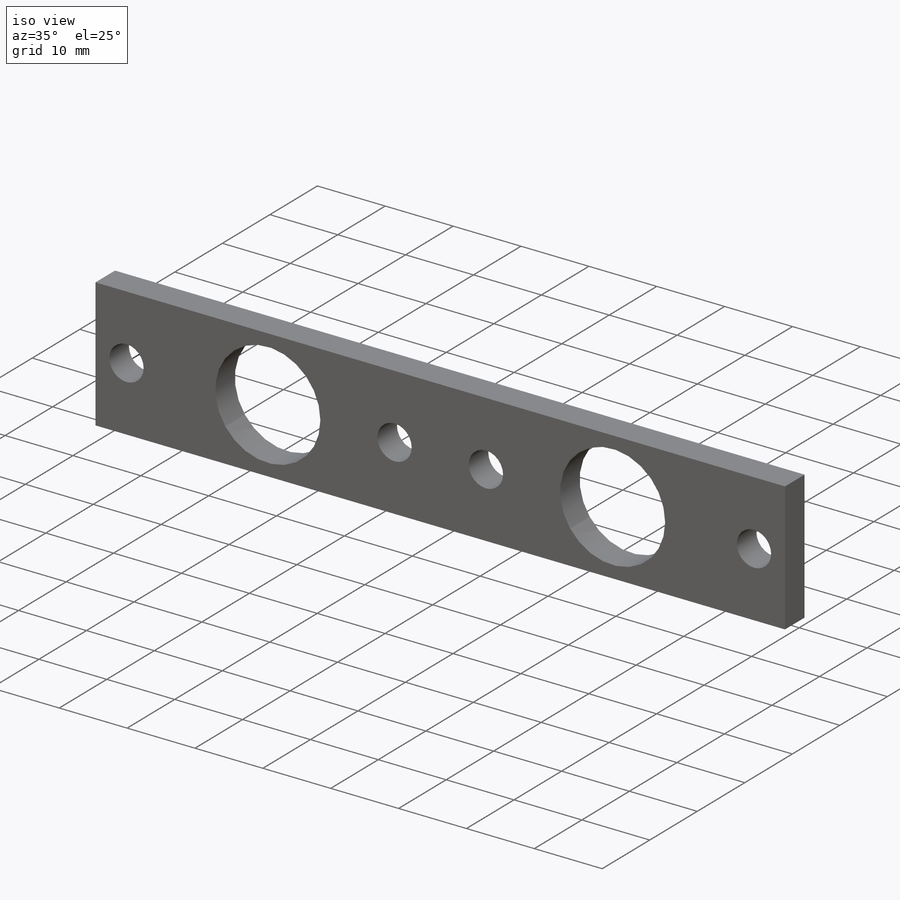
[diagram: iso view]
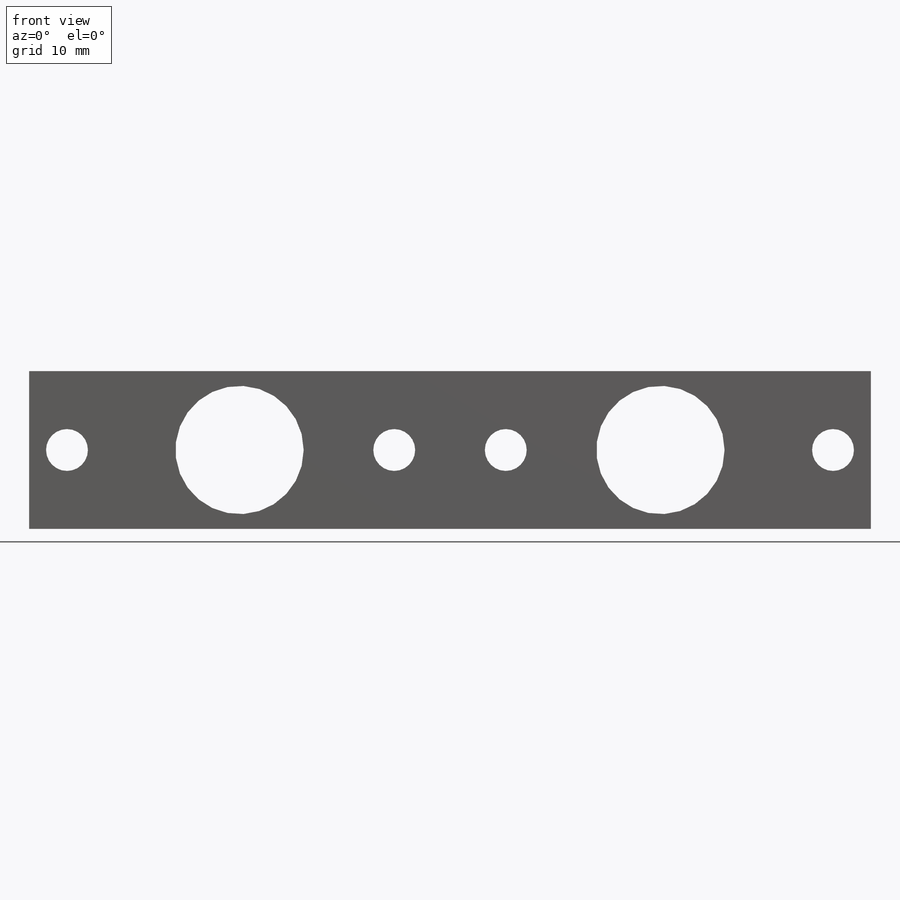
[diagram: front view]
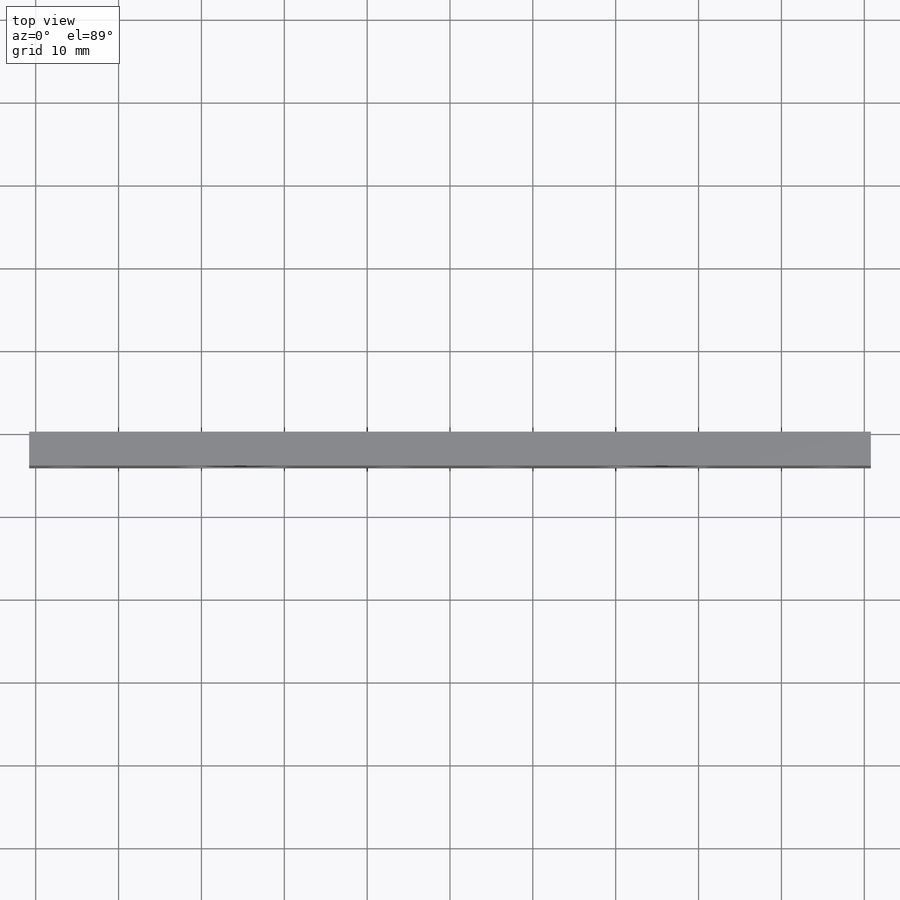
[diagram: top view]
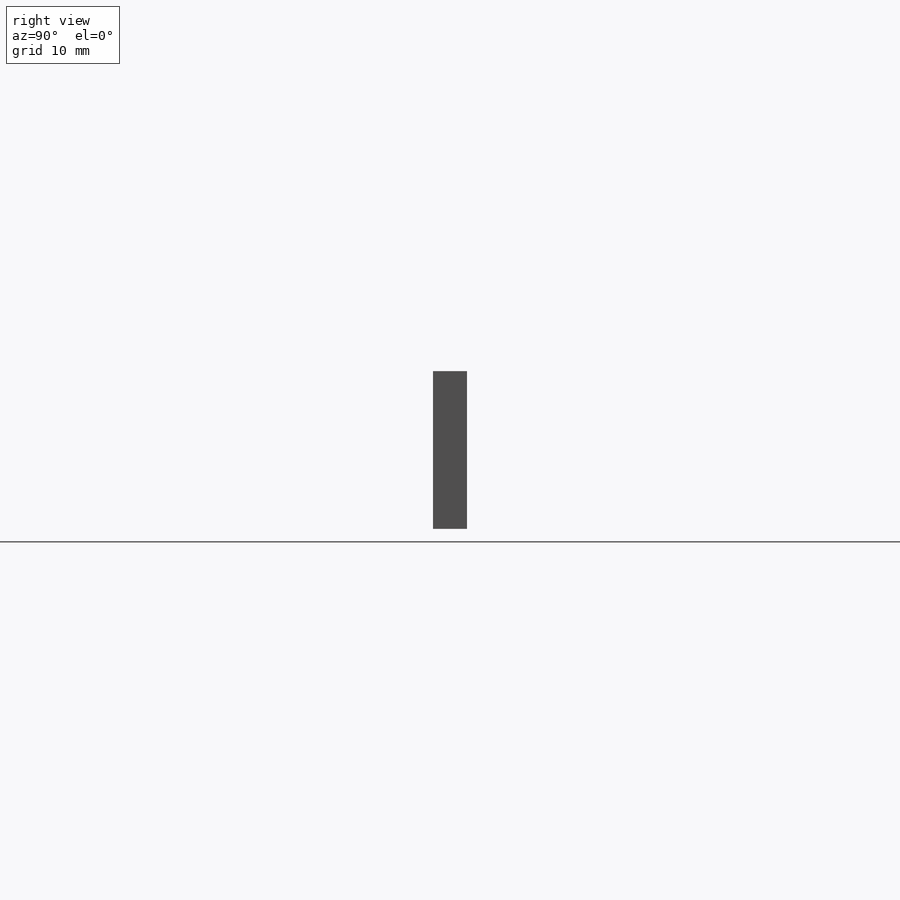
[diagram: right view]
SOLIDWORKS PART (.sldprt)
format: sldprt  version: not decoded by parser v0  size: 220,672 bytes
history: native  units: mm
features: sketch x5, hole x2, material x1, extrude x1 (+16 scaffold rows collapsed)
feature tree (25):
  scaffold x16  (default folders/planes/origin — collapsed)
  material  "6061-T6 Al"
  sketch  "Sketch1"  dims[D1=101.6mm D2=19.05mm]
  extrude  "Extrude1"  Depth=4.1148mm
  hole  "#8 (0.199) Diameter Hole1"  Diameter=5.0546mm Depth=4.1148mm
  sketch  "Sketch3"  dims[D1=0.0mm D2=4.572mm D3=44.069mm D4=57.531mm D5=97.028mm]
  sketch  "Sketch2"  dims[hole-wizard template sketch: 60 standard entries collapsed; hole parameters kept: c18.Thru Hole Depth=4.1148mm]
  hole  "39/64 (0.60938) Diameter Hole1"  Diameter=15.478252mm Depth=4.1148mm
  sketch  "Sketch5"  dims[D1=0.0mm D2=25.4mm D3=76.2mm]
  sketch  "Sketch4"  dims[hole-wizard template sketch: 59 standard entries collapsed; hole parameters kept: c18.Thru Hole Dia.=~15.478252mm c18.Thru Hole Depth=4.1148mm]
decode coverage: 8 of 8 modeling features carry decoded parameters
note: ~ marks probable driven/reference dimensions
note: suppression state not decoded; provenance and decode notes live in map.json
